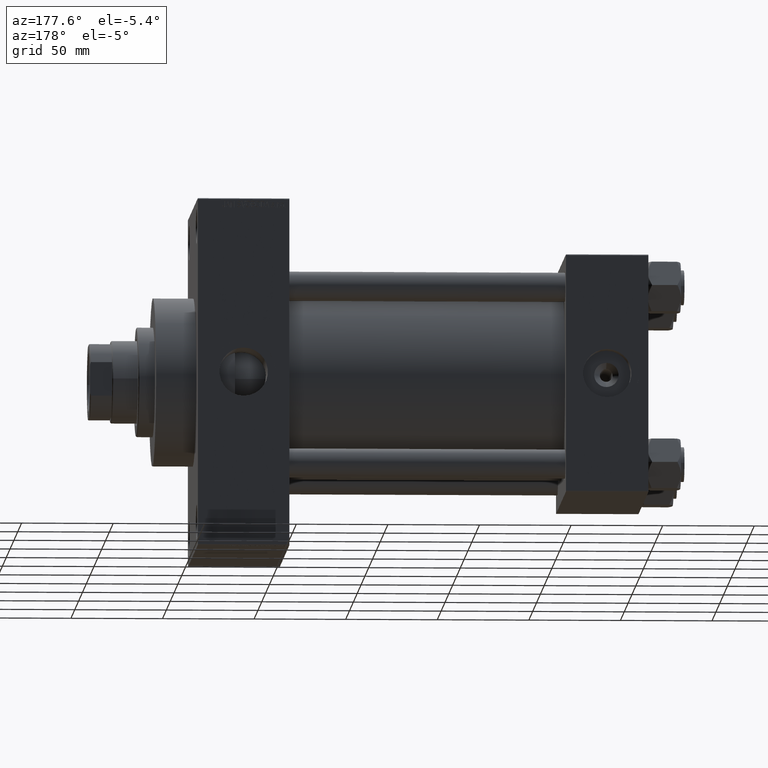
[diagram: clean part render]
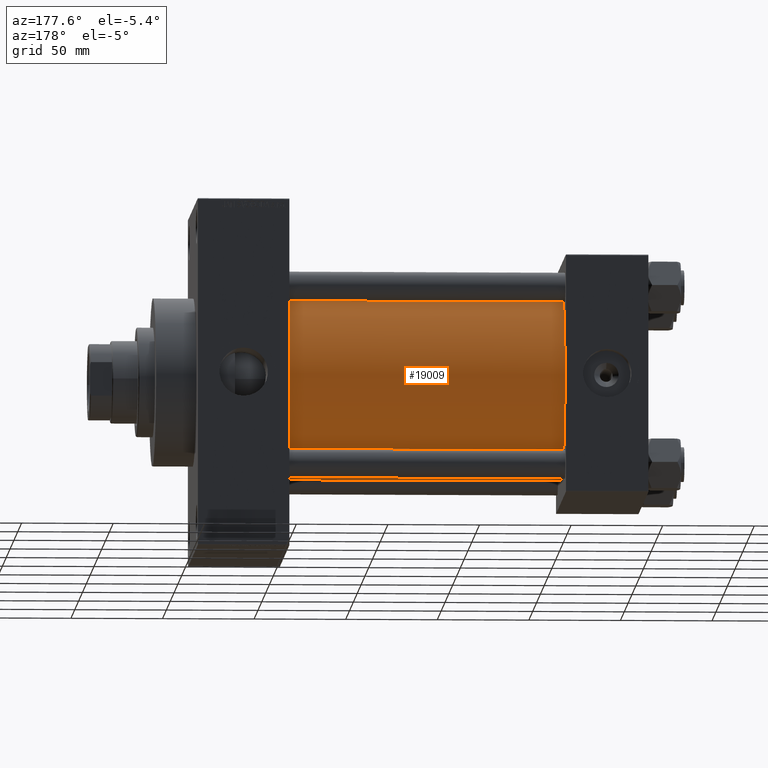
[diagram: same view with one face highlighted and labeled with its STEP entity id]
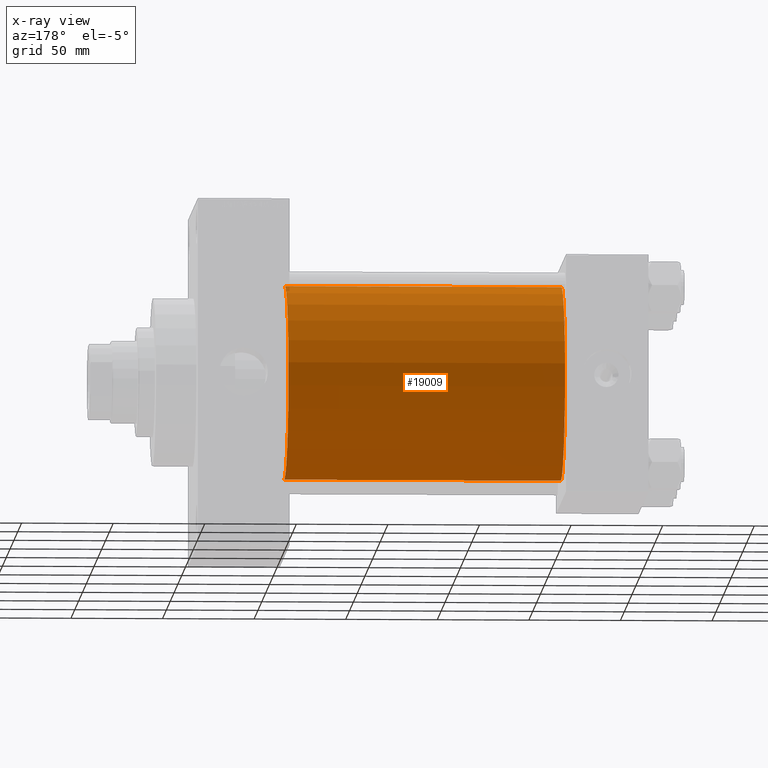
[diagram: x-ray of the same camera — body ghosted, the highlighted face saturated]
A machine part, auxiliary view. The second image highlights one B-rep face of the part: STEP entity #19009.
The next image is the same camera in x-ray: the body ghosted, the highlighted face saturated — about 1% of this face is hidden behind the body in this view.
In plain terms, the highlighted cylindrical surface (partial cylindrical patch) has radius 53 mm, axis along (-1, -0, -0).
Its self-contained STEP definition (entity closure, byte-faithful):
#47 = DIRECTION ( 'NONE',  ( 0.000000000000000000, 0.000000000000000000, 1.000000000000000000 ) ) ;
#3717 = EDGE_CURVE ( 'NONE', #3986, #18385, #23876, .T. ) ;
#3986 = VERTEX_POINT ( 'NONE', #40317 ) ;
#4834 = AXIS2_PLACEMENT_3D ( 'NONE', #19598, #42503, #30944 ) ;
#10949 = DIRECTION ( 'NONE',  ( -1.000000000000000000, -0.000000000000000000, -0.000000000000000000 ) ) ;
#11061 = LINE ( 'NONE', #27187, #34773 ) ;
#11259 = AXIS2_PLACEMENT_3D ( 'NONE', #26974, #34517, #47 ) ;
#12999 = DIRECTION ( 'NONE',  ( 1.000000000000000000, 0.000000000000000000, 0.000000000000000000 ) ) ;
#14012 = VERTEX_POINT ( 'NONE', #38953 ) ;
#14228 = CARTESIAN_POINT ( 'NONE',  ( 196.0000000000000000, 3.888542821515762466E-15, -53.00000000000000711 ) ) ;
#17830 = CARTESIAN_POINT ( 'NONE',  ( 44.99999999999998579, -2.602085213965210642E-15, 53.00000000000000711 ) ) ;
#18385 = VERTEX_POINT ( 'NONE', #31909 ) ;
#19009 = ADVANCED_FACE ( 'NONE', ( #46086 ), #19145, .T. ) ;
#19145 = CYLINDRICAL_SURFACE ( 'NONE', #11259, 53.00000000000000711 ) ;
#19598 = CARTESIAN_POINT ( 'NONE',  ( 44.99999999999998579, -2.602085213965210642E-15, 0.000000000000000000 ) ) ;
#20557 = CARTESIAN_POINT ( 'NONE',  ( 196.0000000000000000, -2.602085213965210642E-15, 0.000000000000000000 ) ) ;
#21652 = EDGE_CURVE ( 'NONE', #14012, #31282, #36177, .T. ) ;
#22039 = LINE ( 'NONE', #14228, #26872 ) ;
#23876 = CIRCLE ( 'NONE', #31088, 53.00000000000000711 ) ;
#25776 = ORIENTED_EDGE ( 'NONE', *, *, #3717, .F. ) ;
#26504 = EDGE_CURVE ( 'NONE', #18385, #31282, #11061, .T. ) ;
#26872 = VECTOR ( 'NONE', #10949, 1000.000000000000000 ) ;
#26974 = CARTESIAN_POINT ( 'NONE',  ( 196.0000000000000000, -2.602085213965210642E-15, 0.000000000000000000 ) ) ;
#27187 = CARTESIAN_POINT ( 'NONE',  ( 196.0000000000000000, -2.602085213965210642E-15, 53.00000000000000711 ) ) ;
#29928 = ORIENTED_EDGE ( 'NONE', *, *, #31623, .T. ) ;
#30944 = DIRECTION ( 'NONE',  ( 0.000000000000000000, 0.000000000000000000, 1.000000000000000000 ) ) ;
#31088 = AXIS2_PLACEMENT_3D ( 'NONE', #20557, #12999, #39438 ) ;
#31282 = VERTEX_POINT ( 'NONE', #17830 ) ;
#31623 = EDGE_CURVE ( 'NONE', #3986, #14012, #22039, .T. ) ;
#31909 = CARTESIAN_POINT ( 'NONE',  ( 196.0000000000000000, -2.602085213965210642E-15, 53.00000000000000711 ) ) ;
#34517 = DIRECTION ( 'NONE',  ( -1.000000000000000000, -0.000000000000000000, -0.000000000000000000 ) ) ;
#34773 = VECTOR ( 'NONE', #42528, 1000.000000000000000 ) ;
#35554 = ORIENTED_EDGE ( 'NONE', *, *, #21652, .T. ) ;
#36177 = CIRCLE ( 'NONE', #4834, 53.00000000000000711 ) ;
#38953 = CARTESIAN_POINT ( 'NONE',  ( 44.99999999999998579, 3.888542821515762466E-15, -53.00000000000000711 ) ) ;
#39438 = DIRECTION ( 'NONE',  ( 0.000000000000000000, 0.000000000000000000, -1.000000000000000000 ) ) ;
#40317 = CARTESIAN_POINT ( 'NONE',  ( 196.0000000000000000, 3.888542821515762466E-15, -53.00000000000000711 ) ) ;
#42492 = EDGE_LOOP ( 'NONE', ( #25776, #29928, #35554, #46179 ) ) ;
#42503 = DIRECTION ( 'NONE',  ( 1.000000000000000000, -0.000000000000000000, 0.000000000000000000 ) ) ;
#42528 = DIRECTION ( 'NONE',  ( -1.000000000000000000, -0.000000000000000000, -0.000000000000000000 ) ) ;
#46086 = FACE_OUTER_BOUND ( 'NONE', #42492, .T. ) ;
#46179 = ORIENTED_EDGE ( 'NONE', *, *, #26504, .F. ) ;